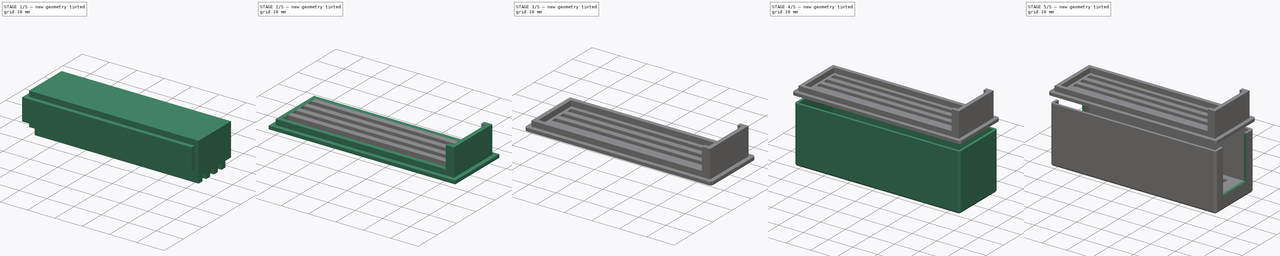
[diagram: build sequence overview — one tinted view per stage of 5, left to right]
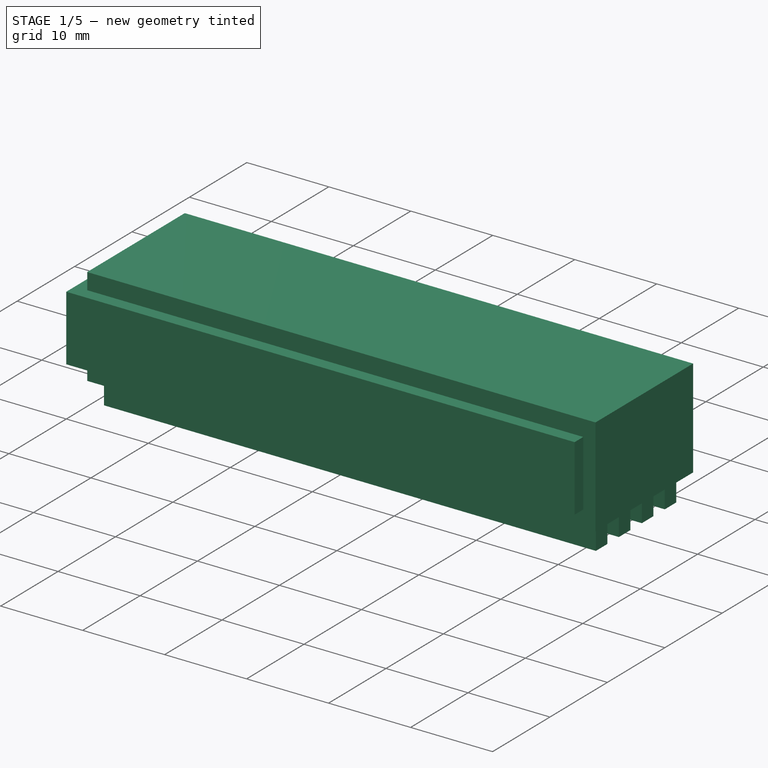
[diagram: stage 1 of 5 — iso view after this stage's code; geometry added in this stage tinted green]
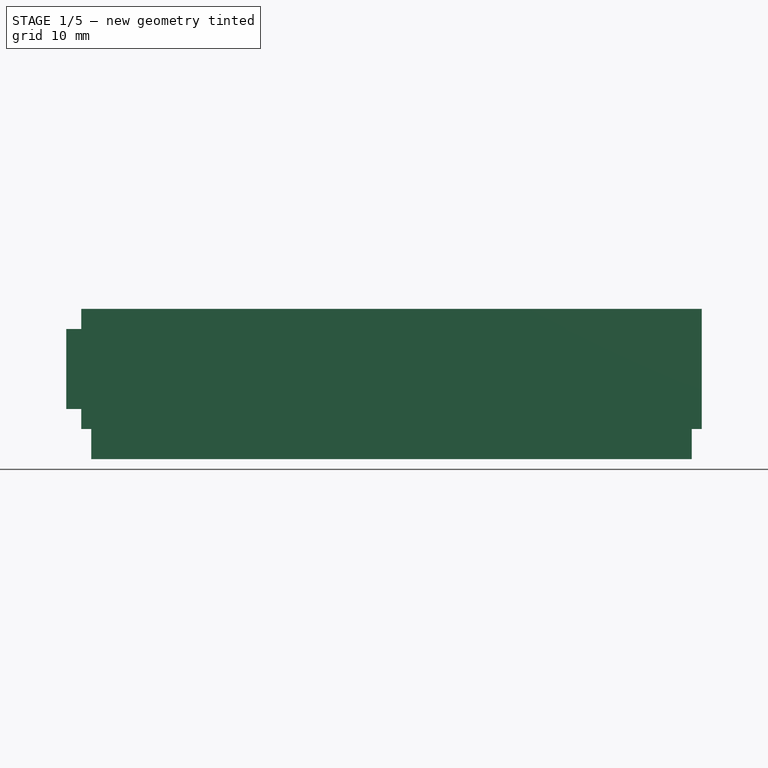
[diagram: stage 1 of 5 — front view after this stage's code; geometry added in this stage tinted green]
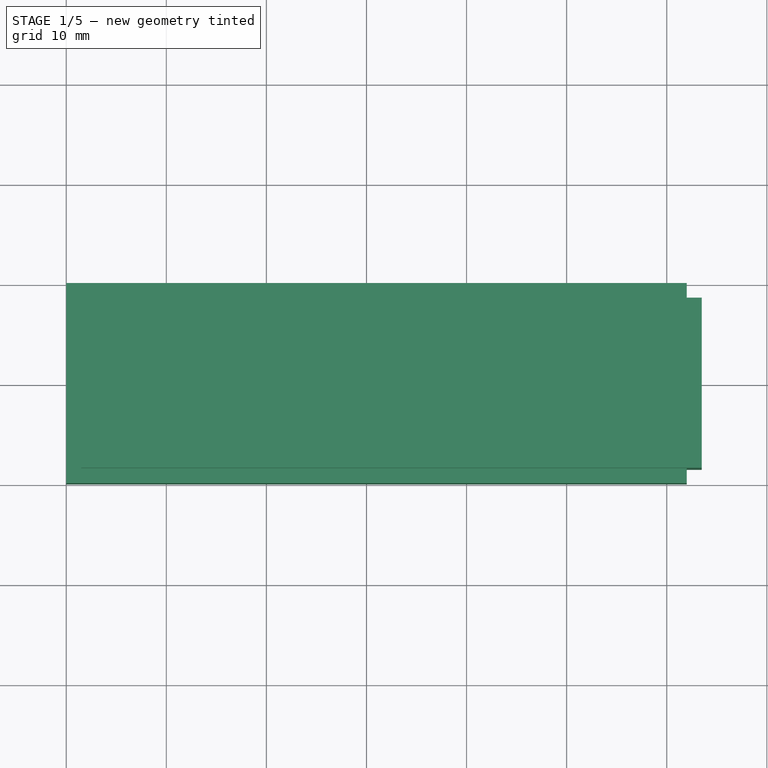
[diagram: stage 1 of 5 — top view after this stage's code; geometry added in this stage tinted green]
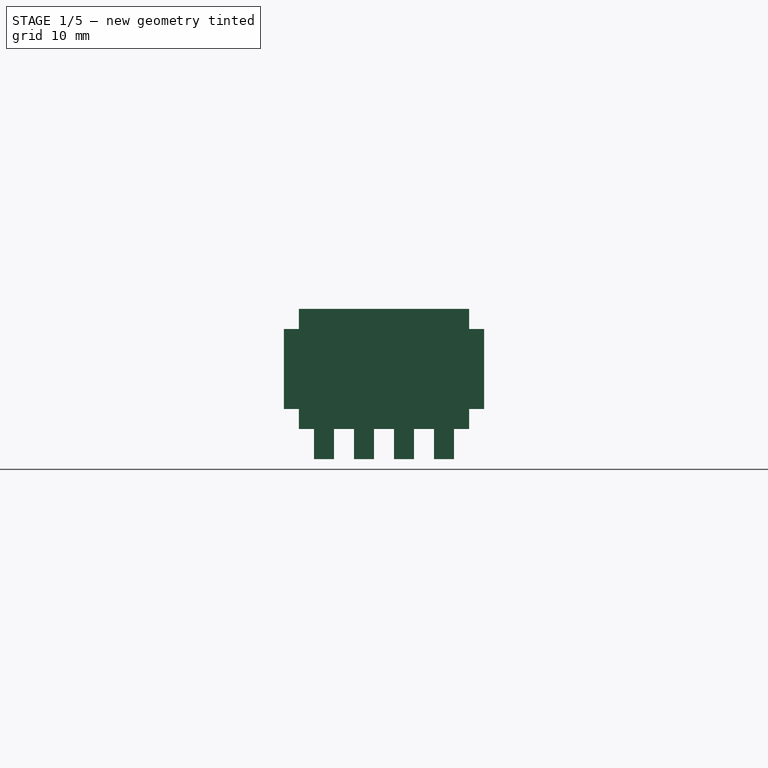
[diagram: stage 1 of 5 — right view after this stage's code; geometry added in this stage tinted green]
FCSTD DOCUMENT  (FreeCAD 0.18R16131 (Git))
Label: usb_stepdown_box
License: All rights reserved
LicenseURL: http://en.wikipedia.org/wiki/All_rights_reserved
objects: Part::Box×8, Part::Cut×5, Part::Thickness×1, PartDesign::FeatureBase×1, Part::Fillet×1, Sketcher::SketchObject×1, PartDesign::Pad×1, PartDesign::Body×1, Part::MultiFuse×1, Part::FeaturePython×1
note: 22 computed .brp shape members not serialized (recipe doc carries the construction recipe); baked Part::Feature solids carry a one-line shape summary decoded from their .brp

FEATURE [Part::Box] Box005  label="Cubo003"
  AttacherType = Attacher::AttachEngine3D
  Height = 12
  Length = 62
  Placement = pos=(1.5,1.5,27) rot=(0,0,1;0rad)
  Width = 17
FEATURE [Part::Box] Box006  label="Cubo004"
  AttacherType = Attacher::AttachEngine3D
  Height = 5
  Length = 60
  Placement = pos=(2.5,3,24) rot=(0,0,1;0rad)
  Width = 2
FEATURE [Part::Box] Box009  label="Cubo007"
  AttacherType = Attacher::AttachEngine3D
  Height = 8
  Length = 62
  Placement = pos=(0,0,29) rot=(0,0,1;0rad)
  Width = 20
FEATURE [Part::FeaturePython] Array  # Draft array (typed FeaturePython)
  Angle = 360
  ArrayType = 0
  Axis = (0,0,1)
  Base = -> Box006
  Center = (0,0,0)
  Fuse = false
  IntervalAxis = (0,0,0)
  IntervalX = (1,0,0)
  IntervalY = (0,4,0)
  IntervalZ = (0,0,1)
  NumberPolar = 1
  NumberX = 1
  NumberY = 4
  NumberZ = 1
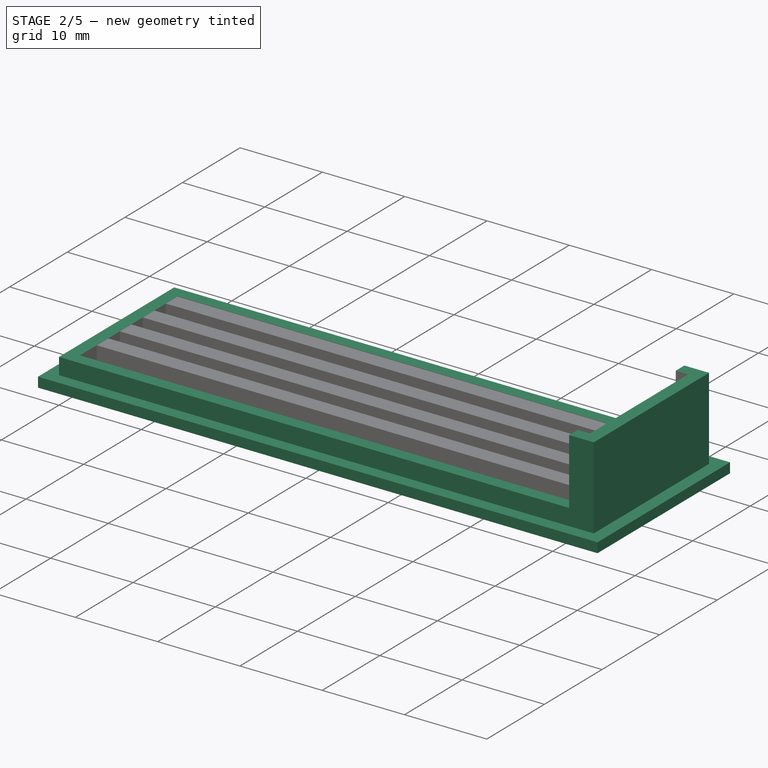
[diagram: stage 2 of 5 — iso view after this stage's code; geometry added in this stage tinted green]
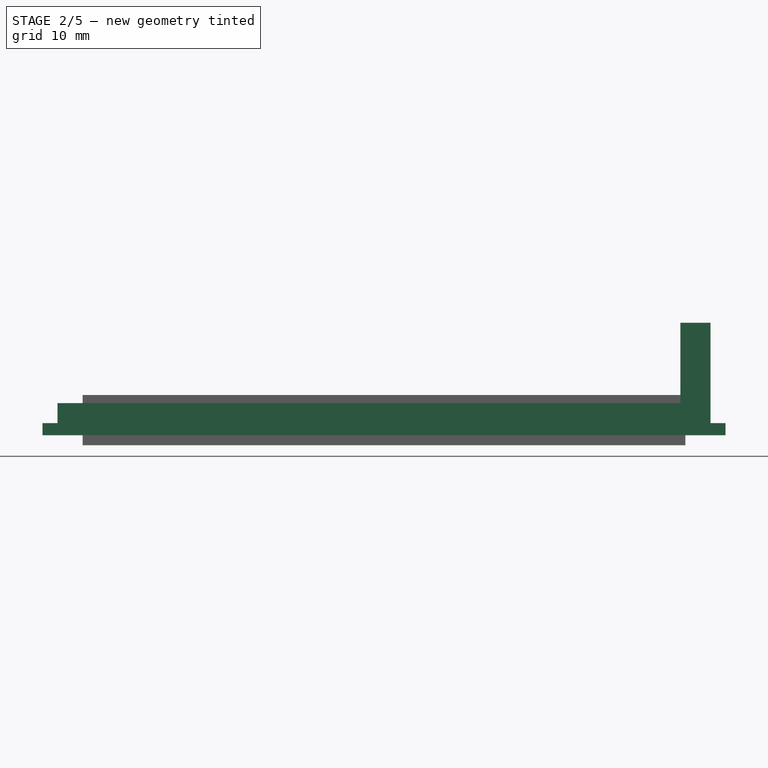
[diagram: stage 2 of 5 — front view after this stage's code; geometry added in this stage tinted green]
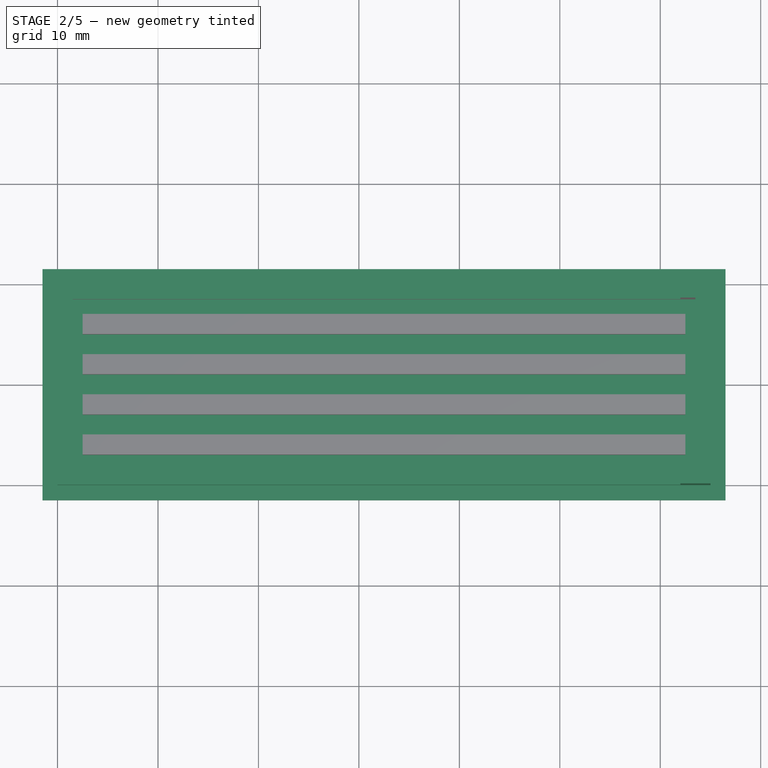
[diagram: stage 2 of 5 — top view after this stage's code; geometry added in this stage tinted green]
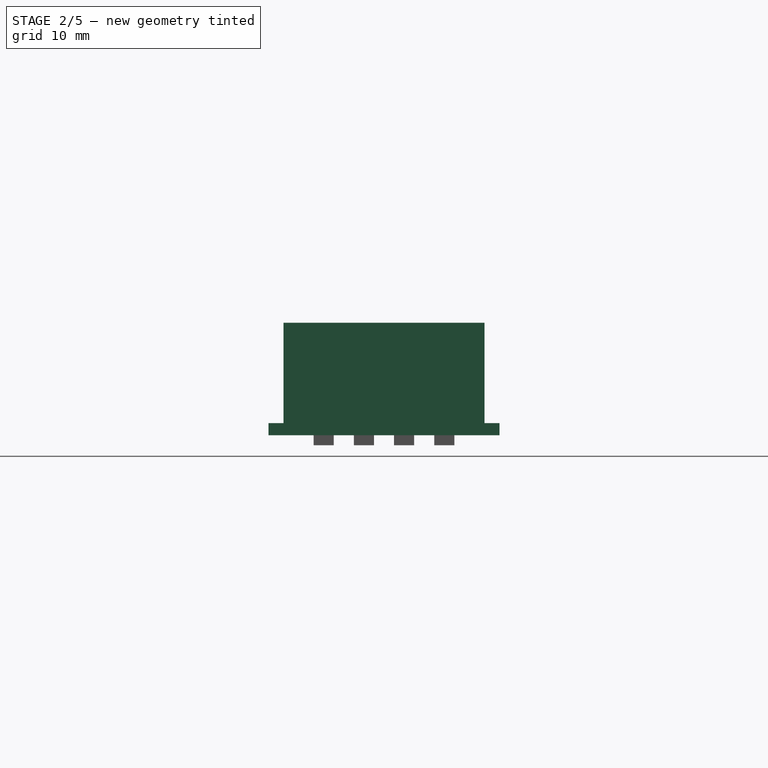
[diagram: stage 2 of 5 — right view after this stage's code; geometry added in this stage tinted green]
FEATURE [Part::Box] Box003  label="Cubo001"
  AttacherType = Attacher::AttachEngine3D
  Height = 1.2
  Length = 68
  Placement = pos=(-1.5,-1.5,25) rot=(0,0,1;0rad)
  Width = 23
FEATURE [Part::Box] Box004  label="Cubo002"
  AttacherType = Attacher::AttachEngine3D
  Height = 10
  Length = 65
  Placement = pos=(0,0,27) rot=(0,0,1;0rad)
  Width = 20
FEATURE [Part::Cut] Cut005
  Base = -> Box004
  Tool = -> Box005
FEATURE [Part::Cut] Cut006
  Base = -> Cut005
  Placement = pos=(0,0,-0.8) rot=(0,0,1;0rad)
  Tool = -> Box009
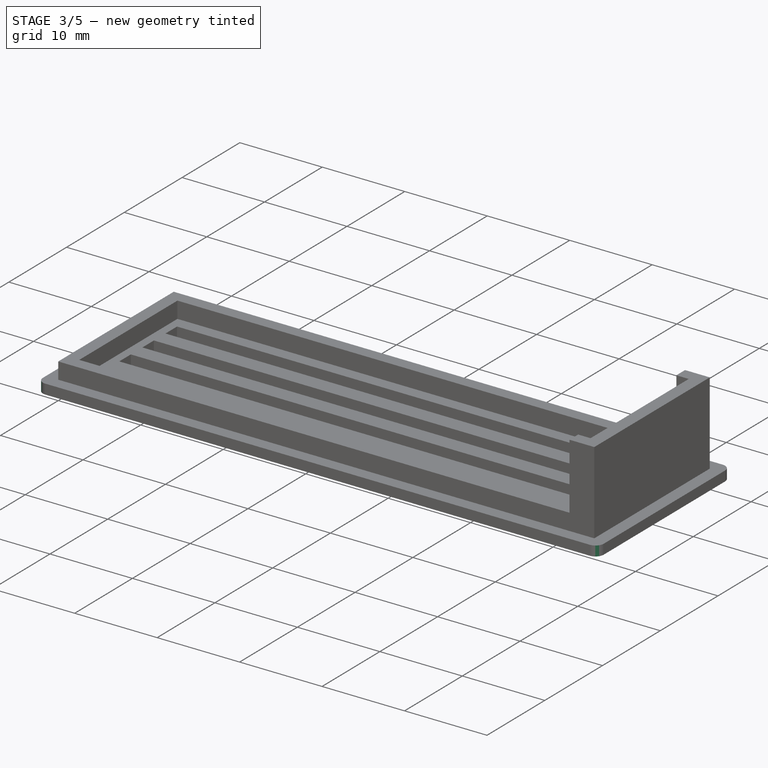
[diagram: stage 3 of 5 — iso view after this stage's code; geometry added in this stage tinted green]
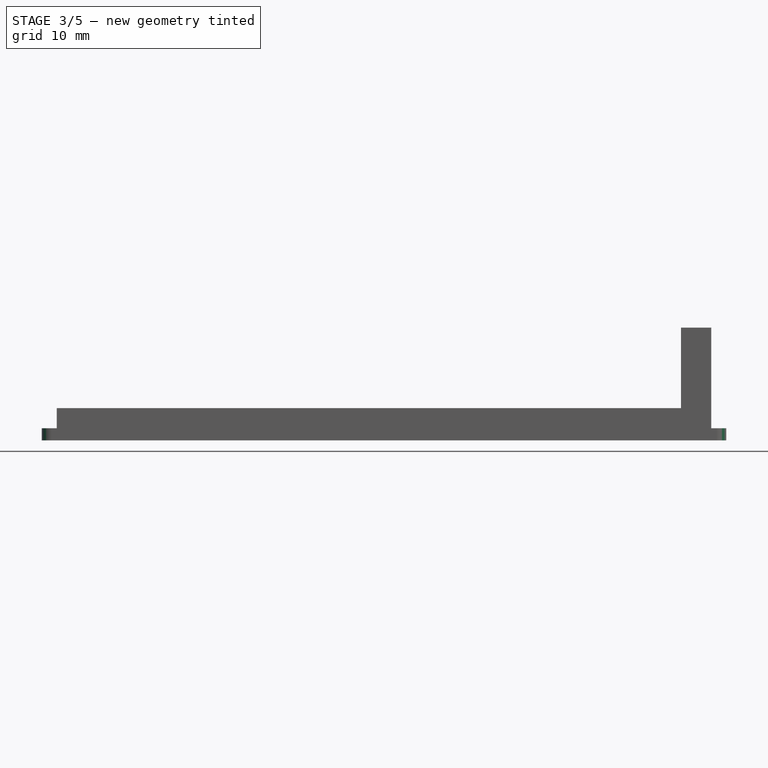
[diagram: stage 3 of 5 — front view after this stage's code; geometry added in this stage tinted green]
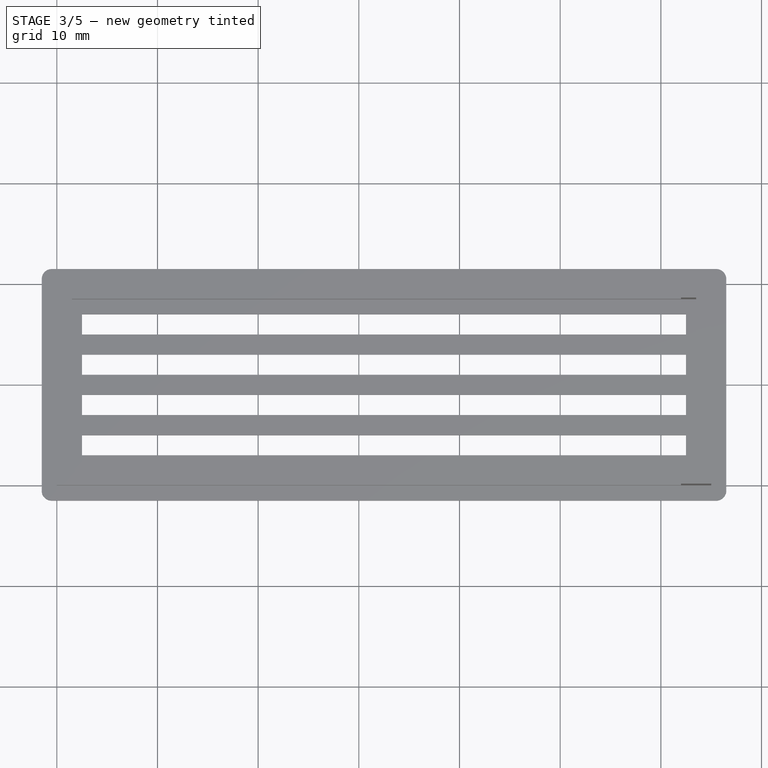
[diagram: stage 3 of 5 — top view after this stage's code; geometry added in this stage tinted green]
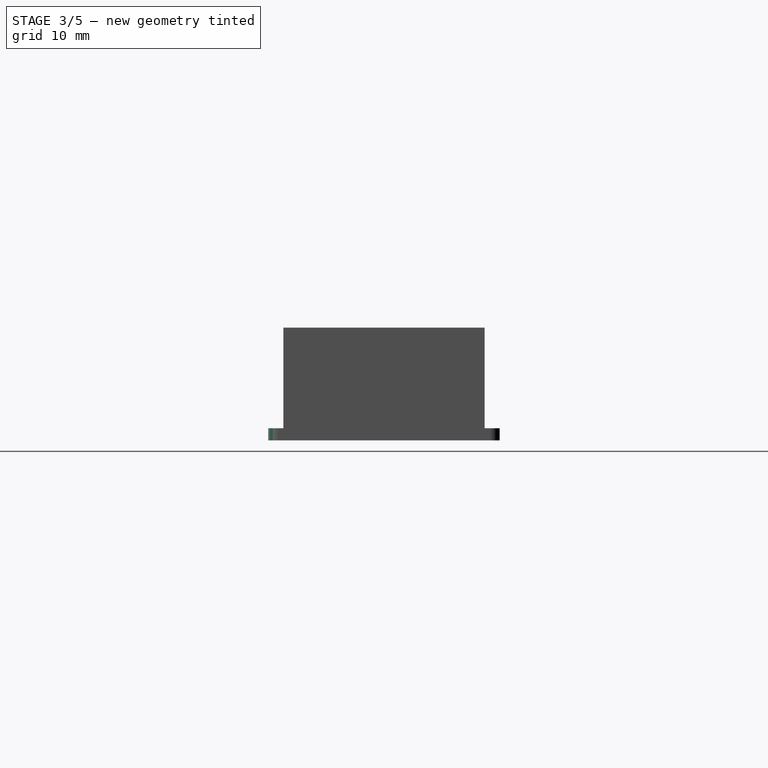
[diagram: stage 3 of 5 — right view after this stage's code; geometry added in this stage tinted green]
FEATURE [Part::Fillet] Fillet
  Base = -> Box003
  Edges = 4 edges r=1: [Edge1,Edge3,Edge5,Edge7]
FEATURE [Part::MultiFuse] Fusion
  Shapes = -> [Cut006,Fillet]
FEATURE [Part::Cut] Cut007  label="TAPA"
  Base = -> Fusion
  Tool = -> Array
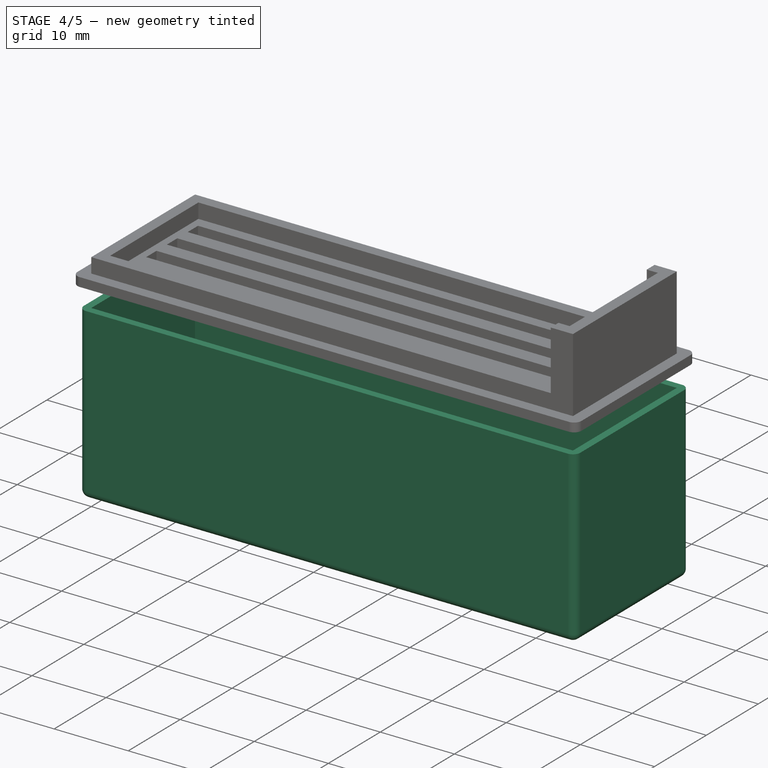
[diagram: stage 4 of 5 — iso view after this stage's code; geometry added in this stage tinted green]
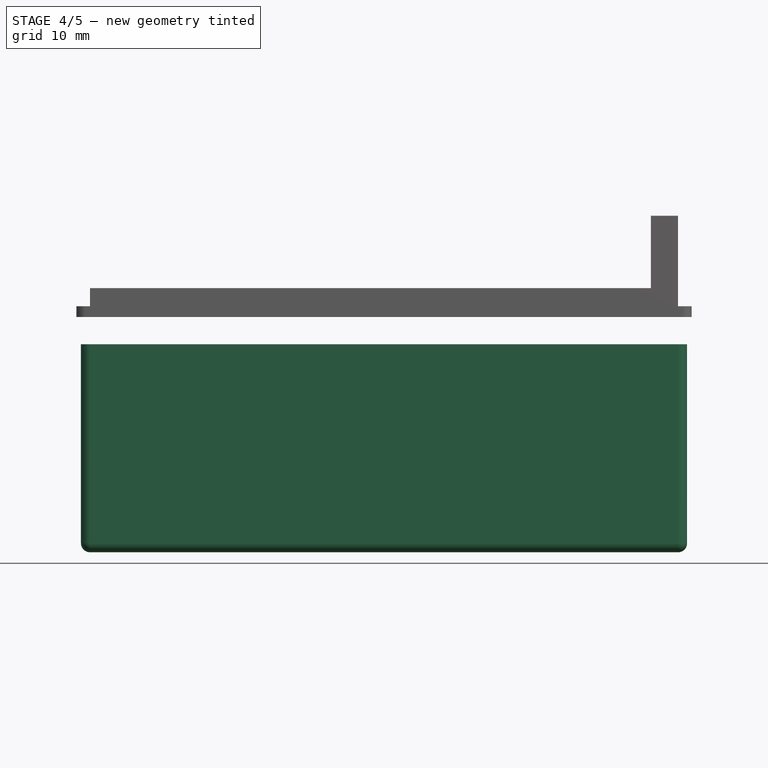
[diagram: stage 4 of 5 — front view after this stage's code; geometry added in this stage tinted green]
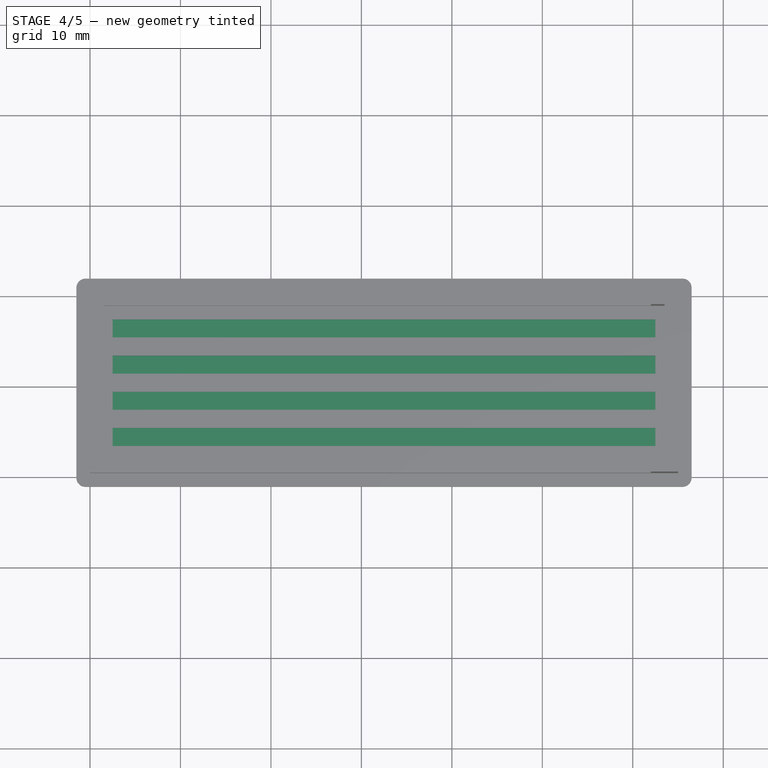
[diagram: stage 4 of 5 — top view after this stage's code; geometry added in this stage tinted green]
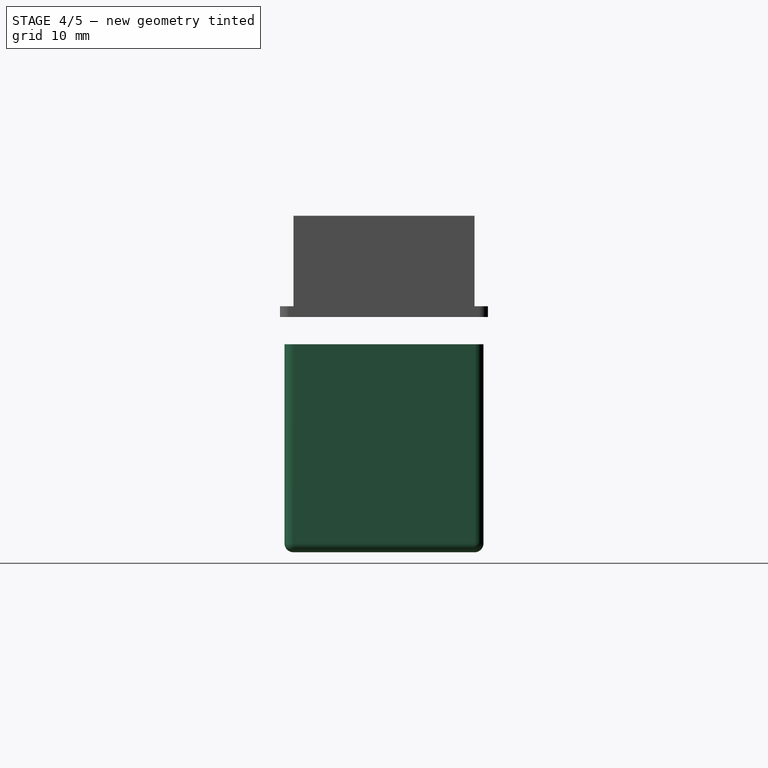
[diagram: stage 4 of 5 — right view after this stage's code; geometry added in this stage tinted green]
FEATURE [Part::Box] Box  label="Cubo"
  AttacherType = Attacher::AttachEngine3D
  Height = 22
  Length = 65
  Width = 20
FEATURE [Part::Thickness] Thickness
  Faces = -> Box [Face6]
  Intersection = false
  Join = 0
  Mode = 0
  SelfIntersection = false
  Value = 1
FEATURE [PartDesign::FeatureBase] BaseFeature
  BaseFeature = -> Thickness
FEATURE [Sketcher::SketchObject] Sketch
  ExternalGeometry = -> [BaseFeature]
  MapMode = 5
  Support = -> [BaseFeature]
  sketch-geometry (8):
    g0: LineSegment StartX=65 StartY=20 StartZ=0 EndX=0 EndY=20 EndZ=0
    g1: LineSegment StartX=0 StartY=20 StartZ=0 EndX=0 EndY=17.5 EndZ=0
    g2: LineSegment StartX=0 StartY=17.5 StartZ=0 EndX=58 EndY=17.5 EndZ=0
    g3: LineSegment StartX=58 StartY=17.5 StartZ=0 EndX=58 EndY=2.5 EndZ=0
    g4: LineSegment StartX=58 StartY=2.5 StartZ=0 EndX=0 EndY=2.5 EndZ=0
    g5: LineSegment StartX=0 StartY=2.5 StartZ=0 EndX=0 EndY=0 EndZ=0
    g6: LineSegment StartX=0 StartY=0 StartZ=0 EndX=65 EndY=0 EndZ=0
    g7: LineSegment StartX=65 StartY=0 StartZ=0 EndX=65 EndY=20 EndZ=0
  constraints (20):
    c: Coincident(g-3,g0)
    c: Coincident(g0,g-4)
    c: Coincident(g0,g1)
    c: PointOnObject(g1,g-4)
    c: Coincident(g1,g2)
    c: Horizontal(g2)
    c: Coincident(g2,g3)
    c: Vertical(g3)
    c: Coincident(g3,g4)
    c: PointOnObject(g4,g-4)
    c: Horizontal(g4)
    c: Coincident(g4,g5)
    c: Coincident(g5,g-1)
    c: Coincident(g5,g6)
    c: Coincident(g6,g-3)
    c: Coincident(g6,g7)
    c: Coincident(g7,g0)
    c: DistanceY(g1,g1) = 2.5
    c: DistanceY(g5,g5) = 2.5
    c: DistanceX(g2,g0) = 7
FEATURE [PartDesign::Pad] Pad
  BaseFeature = -> BaseFeature
  Length = 2.5
  Length2 = 100
  Profile = -> Sketch
  Type = 0
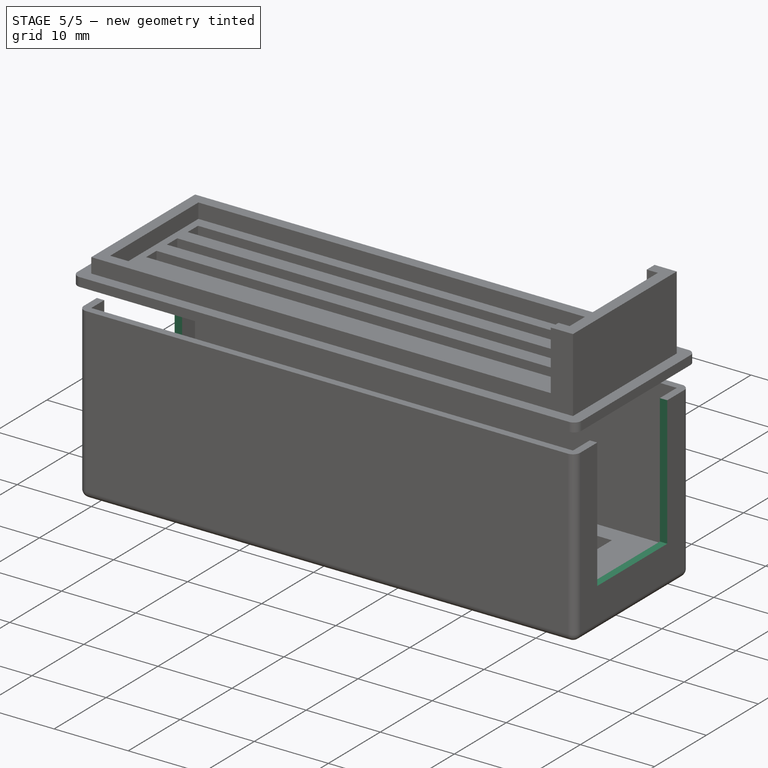
[diagram: stage 5 of 5 — iso view after this stage's code; geometry added in this stage tinted green]
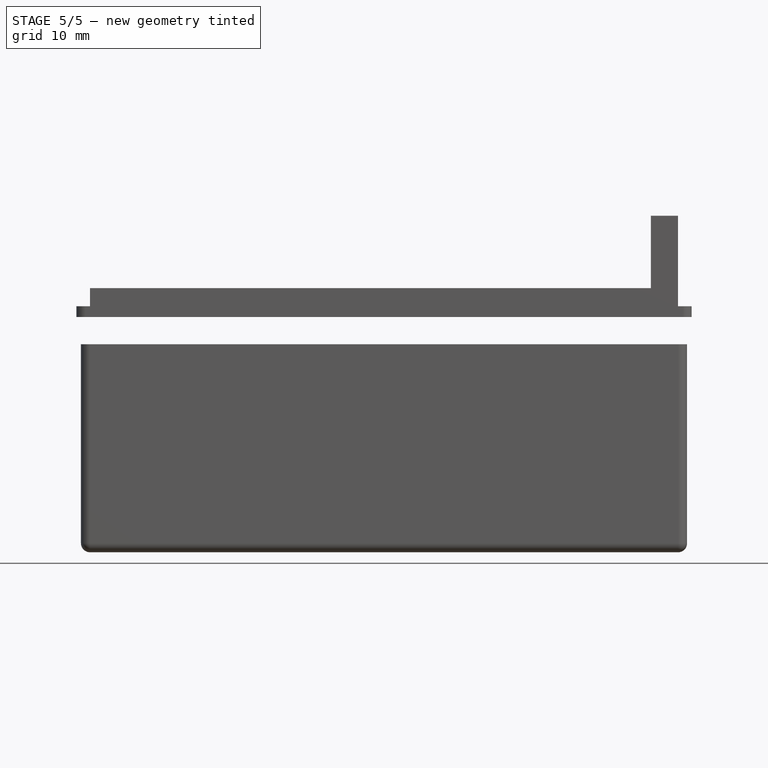
[diagram: stage 5 of 5 — front view after this stage's code; geometry added in this stage tinted green]
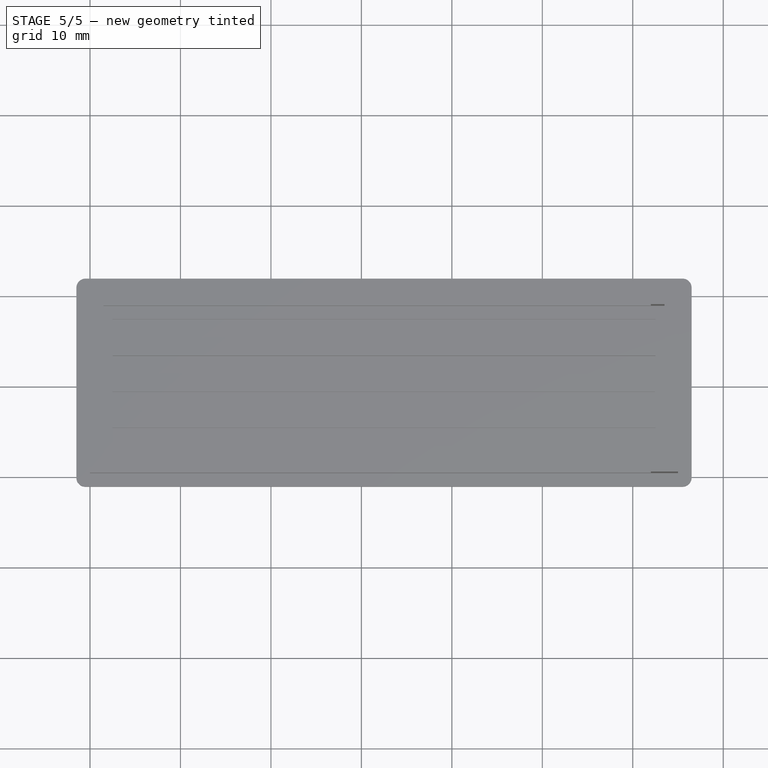
[diagram: stage 5 of 5 — top view after this stage's code; geometry added in this stage tinted green]
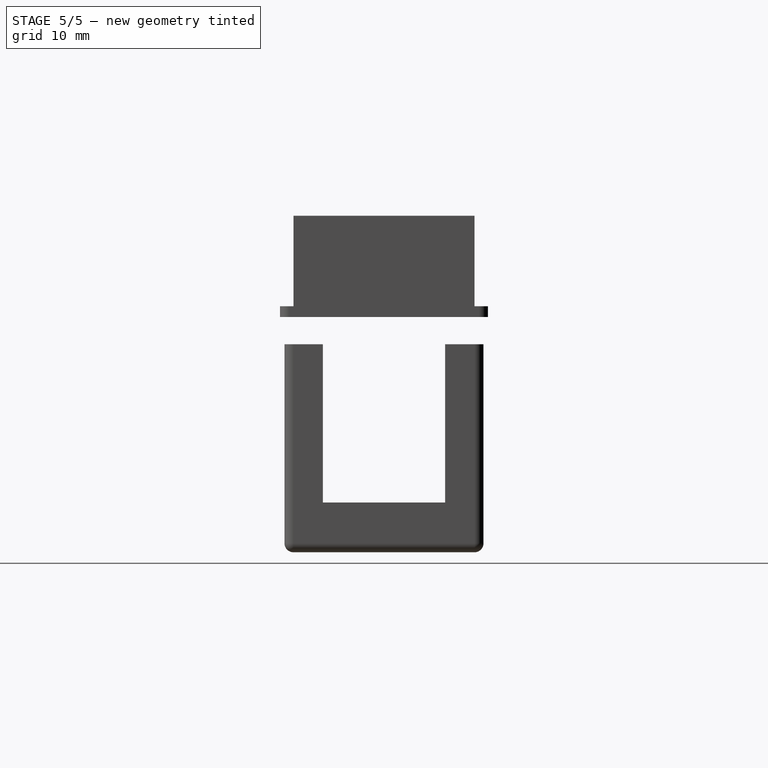
[diagram: stage 5 of 5 — right view after this stage's code; geometry added in this stage tinted green]
FEATURE [Part::Box] Box001  label="cable_hole"
  AttacherType = Attacher::AttachEngine3D
  Height = 25
  Length = 10
  Placement = pos=(-5,2.5,0) rot=(0,0,1;0rad)
  Width = 15
FEATURE [Part::Box] Box002  label="usb_hole"
  AttacherType = Attacher::AttachEngine3D
  Height = 24.5
  Length = 10
  Placement = pos=(60,3.25,4.5) rot=(0,0,1;0rad)
  Width = 13.5
FEATURE [PartDesign::Body] Body
  BaseFeature = -> Thickness
  Group = -> [BaseFeature,Sketch,Pad]
  Origin = -> Origin
  Tip = -> Pad
FEATURE [Part::Cut] Cut
  Base = -> Body
  Tool = -> Box002
FEATURE [Part::Cut] Cut004  label="caja"
  Base = -> Cut
  Tool = -> Box001
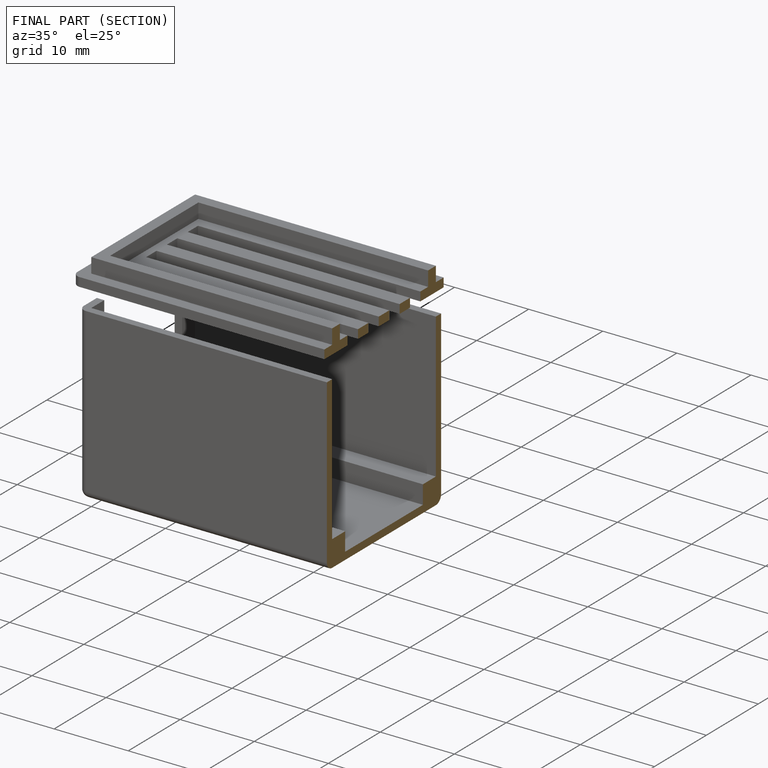
[diagram: finished part — half-section view (interior)]
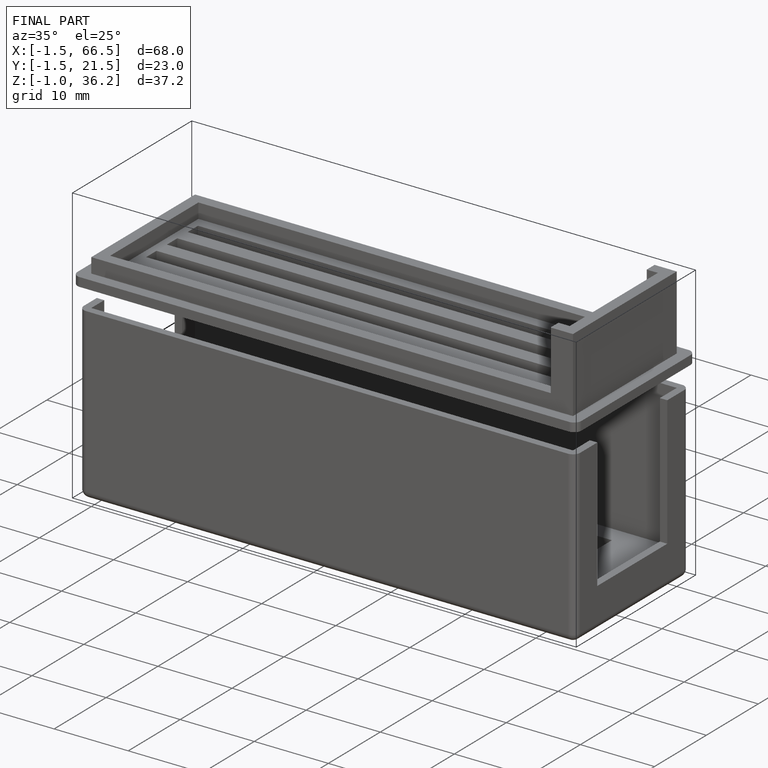
[diagram: finished part — iso view with bounding-box wireframe]
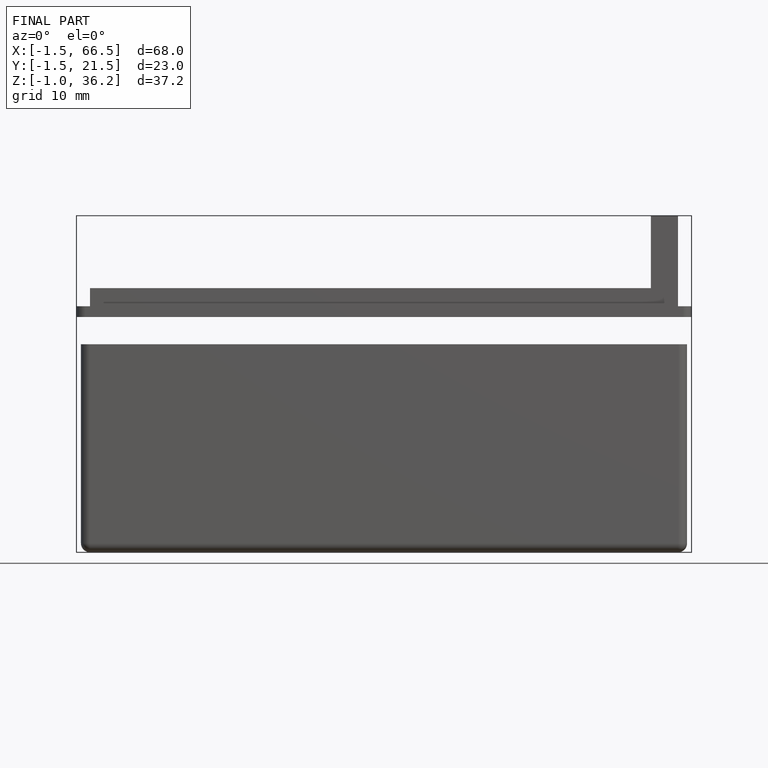
[diagram: finished part — front view with bounding-box wireframe]
